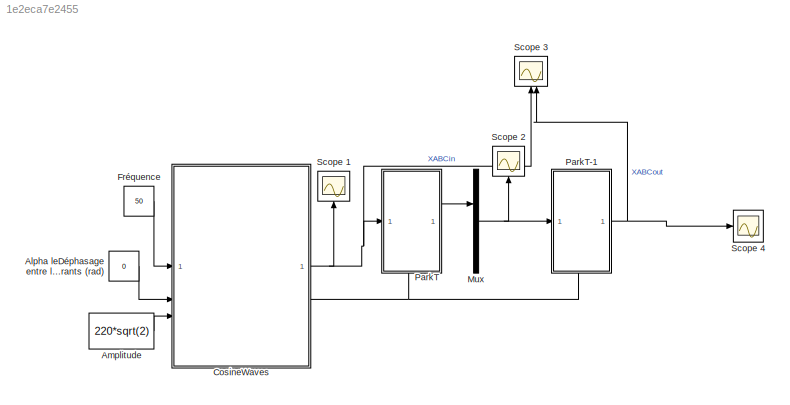
MODEL slx_1e2eca7e2455
KIND model
CONFIG AbsTol = 1e-6
CONFIG EnableMultiTasking = off
CONFIG FixedStep = 1e-4
CONFIG MaxStep = auto
CONFIG MinStep = auto
CONFIG PostLoadFcn = , if any(exist('dsrtsu_mdlpostloadfcn', 'file') == [2, 3, 6]), try dsrtsu_mdlpostloadfcn('Execute', bdroot); catch fprintf('Error in PostLoadFcn (dsrtsu_mdlpostloadfcn) for model "%s":\n %s\n', bdroot, lasterr); end, end, \n
CONFIG RelTol = 1e-6
CONFIG SampleTimeConstraint = Unconstrained
CONFIG SolverName = ode1
CONFIG StartTime = 0.0
CONFIG StopTime = 1
BLOCK [Constant] Alpha leDéphasage entre les courants (rad)
  Value = 0
BLOCK [Constant] Amplitude
  Value = 220*sqrt(2)
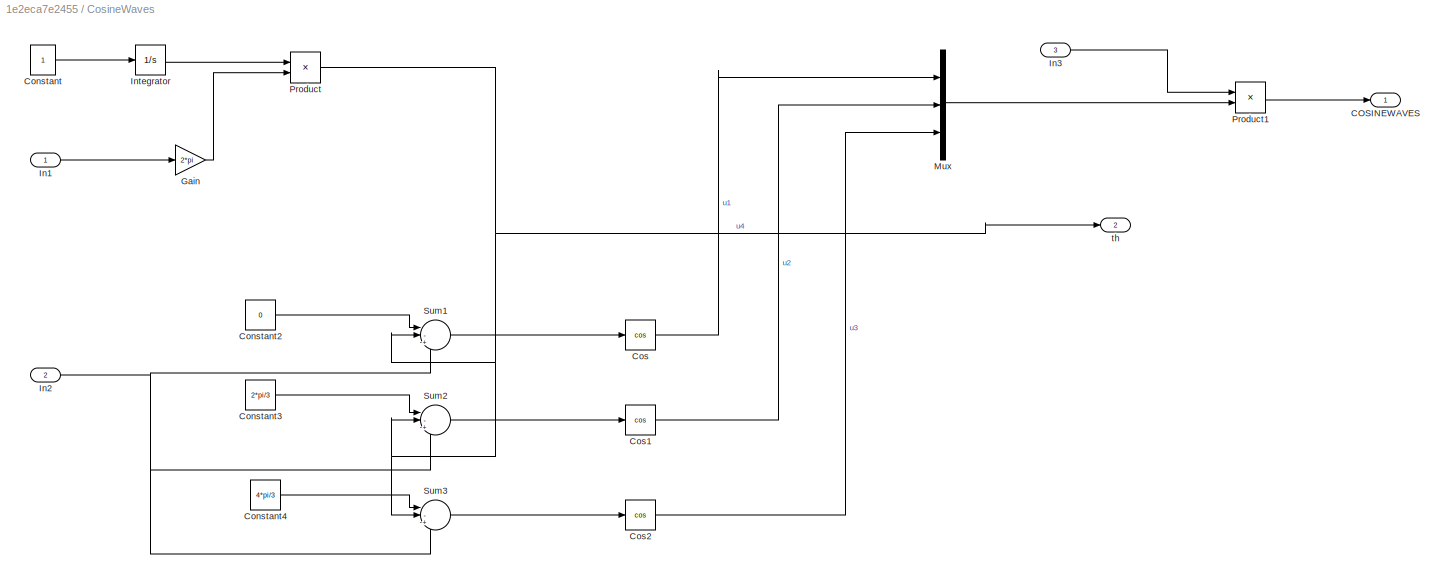
BLOCK [SubSystem] CosineWaves
BLOCK [Outport] CosineWaves/COSINEWAVES
BLOCK [Constant] CosineWaves/Constant
BLOCK [Constant] CosineWaves/Constant2
  Value = 0
BLOCK [Constant] CosineWaves/Constant3
  Value = 2*pi/3
BLOCK [Constant] CosineWaves/Constant4
  Value = 4*pi/3
BLOCK [Trigonometry] CosineWaves/Cos
  Operator = cos
BLOCK [Trigonometry] CosineWaves/Cos1
  Operator = cos
BLOCK [Trigonometry] CosineWaves/Cos2
  Operator = cos
BLOCK [Gain] CosineWaves/Gain
  Gain = 2*pi
BLOCK [Inport] CosineWaves/In1
BLOCK [Inport] CosineWaves/In2
  Port = 2
BLOCK [Inport] CosineWaves/In3
  Port = 3
BLOCK [Integrator] CosineWaves/Integrator
BLOCK [Mux] CosineWaves/Mux
  DisplayOption = bar
  Inputs = 3
BLOCK [Product] CosineWaves/Product
BLOCK [Product] CosineWaves/Product1
BLOCK [Sum] CosineWaves/Sum1
  Inputs = |-+|+
  NameLocation = top
BLOCK [Sum] CosineWaves/Sum2
  Inputs = |-+|+
  NameLocation = top
BLOCK [Sum] CosineWaves/Sum3
  Inputs = |-+|+
  NameLocation = top
BLOCK [Outport] CosineWaves/th
  Port = 2
BLOCK [Constant] Fréquence
  Value = 50
BLOCK [Mux] Mux
  DisplayOption = bar
  Inputs = 1
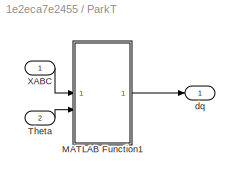
BLOCK [SubSystem] ParkT
  PortSchema = {"entries":[{"content":{"sides":[{"content":{"connectorIds":["In1"]},"type":"ConnectorPlacement.EquallySpacedRectSide","uuid":"228dfcfc-5d6b-4d2b-a954-ee5f3fee8856"},{"content":{"connectorIds":["Out1"],"side":"RIGHT"},"type":"ConnectorPlacement.EquallySpacedRectSide","uuid":"1b1b4c30-bceb-4aa5-9a3a-183aa9b64903"},{"content":{"connectorIds":[],"side":"TOP"},"type":"ConnectorPlacement.EquallySpacedR...<+389ch>
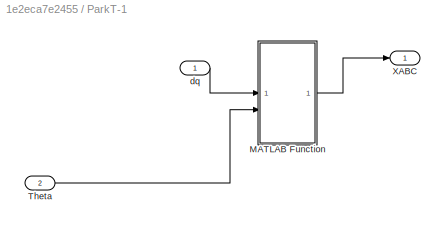
BLOCK [SubSystem] ParkT-1
  PortSchema = {"entries":[{"content":{"sides":[{"content":{"connectorIds":["In1"]},"type":"ConnectorPlacement.EquallySpacedRectSide","uuid":"ed5ee07b-b316-480c-b9ec-652acf4aaee1"},{"content":{"connectorIds":["Out1"],"side":"RIGHT"},"type":"ConnectorPlacement.EquallySpacedRectSide","uuid":"52d50e66-916b-4a4a-9cee-3d7b4015ccc4"},{"content":{"connectorIds":[],"side":"TOP"},"type":"ConnectorPlacement.EquallySpacedR...<+389ch>
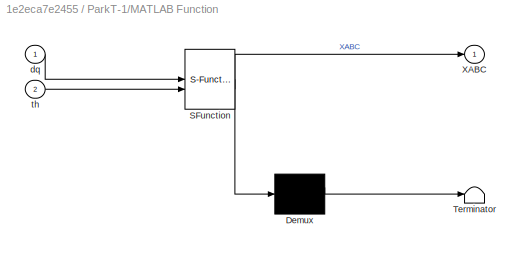
BLOCK [SubSystem] ParkT-1/MATLAB Function
  ErrorFcn = Stateflow.Translate.translate
  PermitHierarchicalResolution = ExplicitOnly
  SFBlockType = MATLAB Function
  TreatAsAtomicUnit = on
BLOCK [Demux] ParkT-1/MATLAB Function/ Demux 
  Outputs = 1
BLOCK [S-Function] ParkT-1/MATLAB Function/ SFunction 
  EnableBusSupport = on
  FunctionName = sf_sfun
  PortCounts = [2 2]
  SFcnIsStateOwnerBlock = off
  SFunctionDeploymentMode = off
  Tag = Stateflow S-Function 2
BLOCK [Terminator] ParkT-1/MATLAB Function/ Terminator 
BLOCK [Outport] ParkT-1/MATLAB Function/XABC
BLOCK [Inport] ParkT-1/MATLAB Function/dq
BLOCK [Inport] ParkT-1/MATLAB Function/th
  Port = 2
BLOCK [Inport] ParkT-1/Theta
  Port = 2
BLOCK [Outport] ParkT-1/XABC
BLOCK [Inport] ParkT-1/dq
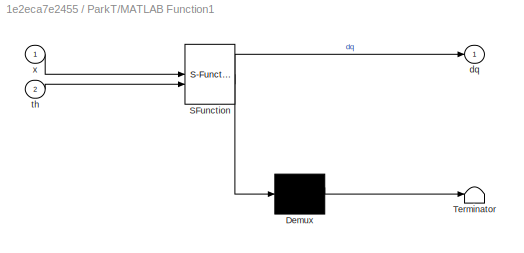
BLOCK [SubSystem] ParkT/MATLAB Function1
  ErrorFcn = Stateflow.Translate.translate
  PermitHierarchicalResolution = ExplicitOnly
  SFBlockType = MATLAB Function
  TreatAsAtomicUnit = on
BLOCK [Demux] ParkT/MATLAB Function1/ Demux 
  Outputs = 1
BLOCK [S-Function] ParkT/MATLAB Function1/ SFunction 
  EnableBusSupport = on
  FunctionName = sf_sfun
  PortCounts = [2 2]
  SFcnIsStateOwnerBlock = off
  SFunctionDeploymentMode = off
  Tag = Stateflow S-Function 1
BLOCK [Terminator] ParkT/MATLAB Function1/ Terminator 
BLOCK [Outport] ParkT/MATLAB Function1/dq
BLOCK [Inport] ParkT/MATLAB Function1/th
  Port = 2
BLOCK [Inport] ParkT/MATLAB Function1/x
BLOCK [Inport] ParkT/Theta
  Port = 2
BLOCK [Inport] ParkT/XABC
BLOCK [Outport] ParkT/dq
BLOCK [Scope] Scope 1
  Floating = off
  NameLocation = right
  NumInputPorts = 1
  ScopeSpecificationString = Simulink.scopes.TimeScopeBlockCfg('CurrentConfiguration', extmgr.ConfigurationSet(extmgr.Configuration('Core','General UI',true),extmgr.Configuration('Core','Source UI',true),extmgr.Configuration('Sources','WiredSimulink',true,'DataLoggingVariableName','ScopeData1'),extmgr.Configuration('Visuals','Time Domain',true,'SerializedDisplays',{struct('MinYLimReal','-388.90873','MaxYLimReal','388.90873','...<+1760ch>
BLOCK [Scope] Scope 2
  Floating = off
  NameLocation = right
  NumInputPorts = 1
  ScopeSpecificationString = Simulink.scopes.TimeScopeBlockCfg('CurrentConfiguration', extmgr.ConfigurationSet(extmgr.Configuration('Core','General UI',true),extmgr.Configuration('Core','Source UI',true),extmgr.Configuration('Sources','WiredSimulink',true,'DataLoggingVariableName','ScopeData2'),extmgr.Configuration('Visuals','Time Domain',true,'SerializedDisplays',{struct('MinYLimReal','-38.89087','MaxYLimReal','350.01786','Y...<+1486ch>
BLOCK [Scope] Scope 3
  Floating = off
  NameLocation = right
  NumInputPorts = 2
  ScopeSpecificationString = Simulink.scopes.TimeScopeBlockCfg('CurrentConfiguration', extmgr.ConfigurationSet(extmgr.Configuration('Core','General UI',true),extmgr.Configuration('Core','Source UI',true),extmgr.Configuration('Sources','WiredSimulink',true,'DataLoggingVariableName','ScopeData1'),extmgr.Configuration('Visuals','Time Domain',true,'SerializedDisplays',{struct('MinYLimReal','-388.90873','MaxYLimReal','388.90873','...<+2013ch>
BLOCK [Scope] Scope 4
  Floating = off
  NumInputPorts = 1
  ScopeSpecificationString = Simulink.scopes.TimeScopeBlockCfg('CurrentConfiguration', extmgr.ConfigurationSet(extmgr.Configuration('Core','General UI',true),extmgr.Configuration('Core','Source UI',true),extmgr.Configuration('Sources','WiredSimulink',true),extmgr.Configuration('Visuals','Time Domain',true,'SerializedDisplays',{struct('MinYLimReal','-388.90873','MaxYLimReal','388.90873','YLabelReal','','MinYLimMag',' 0.00000',...<+1431ch>
LINE Alpha leDéphasage entre les courants (rad):1 -> CosineWaves:2
LINE Amplitude:1 -> CosineWaves:3
LINE CosineWaves/Constant2:1 -> CosineWaves/Sum1:1
LINE CosineWaves/Constant3:1 -> CosineWaves/Sum2:1
LINE CosineWaves/Constant4:1 -> CosineWaves/Sum3:1
LINE CosineWaves/Constant:1 -> CosineWaves/Integrator:1
LINE CosineWaves/Cos1:1 -> CosineWaves/Mux:2
LINE CosineWaves/Cos2:1 -> CosineWaves/Mux:3
LINE CosineWaves/Cos:1 -> CosineWaves/Mux:1
LINE CosineWaves/Gain:1 -> CosineWaves/Product:2
LINE CosineWaves/In1:1 -> CosineWaves/Gain:1
NET CosineWaves/In2:1 -> CosineWaves/Sum1:3, CosineWaves/Sum2:3, CosineWaves/Sum3:3
LINE CosineWaves/In3:1 -> CosineWaves/Product1:1
LINE CosineWaves/Integrator:1 -> CosineWaves/Product:1
LINE CosineWaves/Mux:1 -> CosineWaves/Product1:2
LINE CosineWaves/Product1:1 -> CosineWaves/COSINEWAVES:1
NET CosineWaves/Product:1 -> CosineWaves/Sum1:2, CosineWaves/Sum2:2, CosineWaves/Sum3:2, CosineWaves/th:1
LINE CosineWaves/Sum1:1 -> CosineWaves/Cos:1
LINE CosineWaves/Sum2:1 -> CosineWaves/Cos1:1
LINE CosineWaves/Sum3:1 -> CosineWaves/Cos2:1
NET CosineWaves:1 -> ParkT:1, Scope 1:1, Scope 3:1
NET CosineWaves:2 -> ParkT-1:2, ParkT:2
LINE Fréquence:1 -> CosineWaves:1
NET Mux:1 -> ParkT-1:1, Scope 2:1
LINE ParkT-1/MATLAB Function:1 -> ParkT-1/XABC:1
LINE ParkT-1/Theta:1 -> ParkT-1/MATLAB Function:2
LINE ParkT-1/dq:1 -> ParkT-1/MATLAB Function:1
NET ParkT-1:1 -> Scope 3:2, Scope 4:1
LINE ParkT/MATLAB Function1:1 -> ParkT/dq:1
LINE ParkT/Theta:1 -> ParkT/MATLAB Function1:2
LINE ParkT/XABC:1 -> ParkT/MATLAB Function1:1
LINE ParkT:1 -> Mux:1
note: NET lines group one-source signal fan-out (src -> all destinations, sorted); 1:1 wires keep LINE
CHART ParkT/MATLAB Function1 states=1 transitions=1
  STATE_LABEL 'eML_blk_kernel()'
  STATE_LABEL 'SCRIPT:\nfunction dq = Park(x,th)\n% vd=(2/3)*(u1*cos(th)+u2*cos(th-2*pi/3)+u3*cos(th+2*pi/3));\n% vq=(2/3)*(-u1*sin(th)-u2*sin(th-2*pi/3)-u3*sin(th+2*pi/3));\nP=(2/3)*[ cos(th) cos(th-2*pi/3) cos(th+2*pi/3);\n         -sin(th) -sin(th-2*pi/3) -sin(th+2*pi/3)  ];\ndq=P*x;\n% xd=prod(1);\n% xq=prod(2);'
CHART ParkT-1/MATLAB Function states=1 transitions=1
  STATE_LABEL 'eML_blk_kernel()'
  STATE_LABEL 'SCRIPT:\nfunction XABC= Parkinv(dq,th)\n\nparkinv = [ cos(th),           -sin(th); \n          cos(th-2*pi/3), -sin(th-2*pi/3); \n          cos(th+2*pi/3), -sin(th+2*pi/3)];\n\nXABC = parkinv * [dq];\n\n% x1=temp(1);\n% x2=temp(2);\n% x3=temp(3);'
CHART  states=0 transitions=0
CHART  states=0 transitions=0
